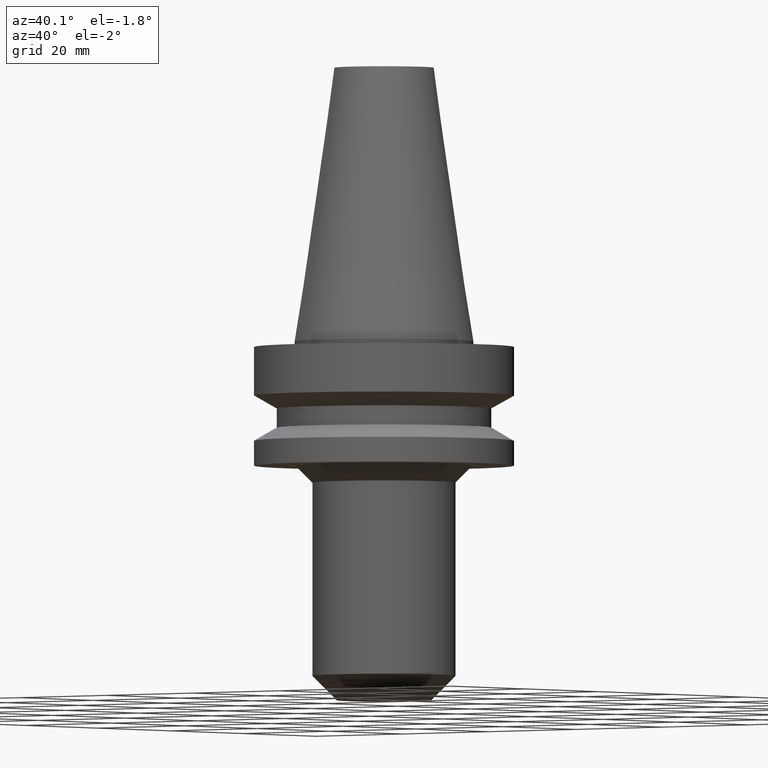
[diagram: clean part render]
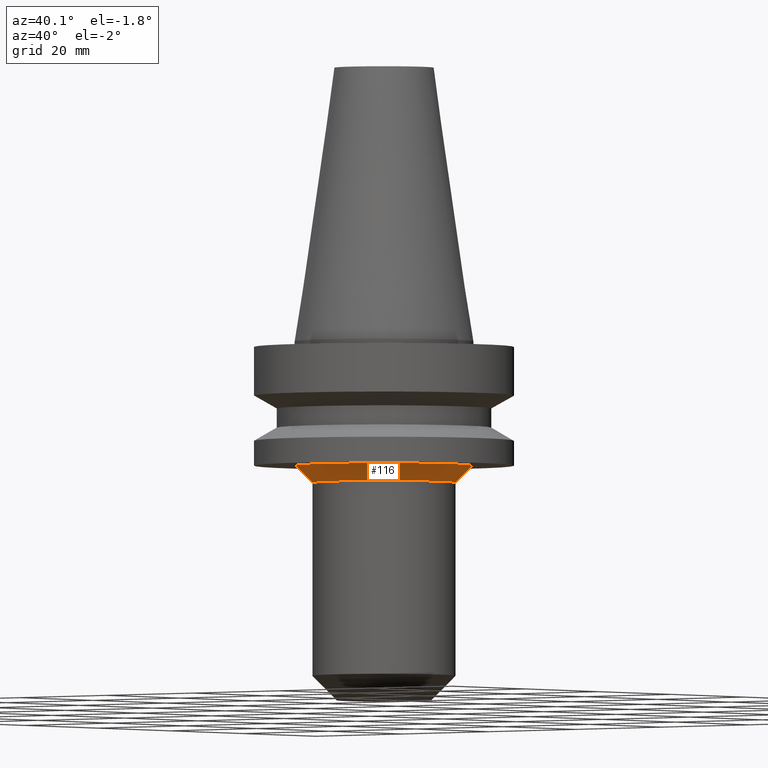
[diagram: same view with one face highlighted and labeled with its STEP entity id]
A machine part, auxiliary view. The second image highlights one B-rep face of the part: STEP entity #116.
In plain terms, the highlighted conical surface has half-angle 45 deg.
Its self-contained STEP definition (entity closure, byte-faithful):
#65=EDGE_CURVE('Unnamed[1]',#157,#157,#158,.T.);
#96=EDGE_CURVE('Unnamed[1]',#205,#205,#206,.T.);
#116=ADVANCED_FACE('Unnamed[1]',(#237,#238),#239,.T.);
#157=VERTEX_POINT('',#278);
#158=CIRCLE('',#279,12.7000000000001);
#205=VERTEX_POINT('',#339);
#206=CIRCLE('',#340,15.7000000000001);
#237=FACE_BOUND('',#378,.T.);
#238=FACE_BOUND('',#379,.T.);
#239=CONICAL_SURFACE('',#380,14.2000000000001,0.785398163397448);
#278=CARTESIAN_POINT('',(1.53080849893419E-015,12.7000000000001,-25.0));
#279=AXIS2_PLACEMENT_3D('',#410,#411,#412);
#339=CARTESIAN_POINT('',(1.34711147906209E-015,15.7000000000001,-22.0));
#340=AXIS2_PLACEMENT_3D('',#463,#464,#465);
#378=EDGE_LOOP('',(#500));
#379=EDGE_LOOP('',(#501));
#380=AXIS2_PLACEMENT_3D('',#502,#503,#504);
#410=CARTESIAN_POINT('',(1.53080849893419E-015,3.06161699786839E-015,-25.0));
#411=DIRECTION('',(6.12323399573677E-017,1.22464679914735E-016,-1.0));
#412=DIRECTION('',(-1.23259516440783E-032,1.0,1.22464679914735E-016));
#463=CARTESIAN_POINT('',(1.34711147906209E-015,2.69422295812418E-015,-22.0));
#464=DIRECTION('',(6.12323399573676E-017,1.22464679914735E-016,-1.0));
#465=DIRECTION('',(-1.23259516440783E-032,1.0,1.22464679914735E-016));
#500=ORIENTED_EDGE('',*,*,#65,.F.);
#501=ORIENTED_EDGE('',*,*,#96,.T.);
#502=CARTESIAN_POINT('',(1.43895998899814E-015,2.87791997799628E-015,-23.5));
#503=DIRECTION('',(-6.12323399573677E-017,-1.22464679914735E-016,1.0));
#504=DIRECTION('',(-1.23259516440783E-032,1.0,1.22464679914735E-016));